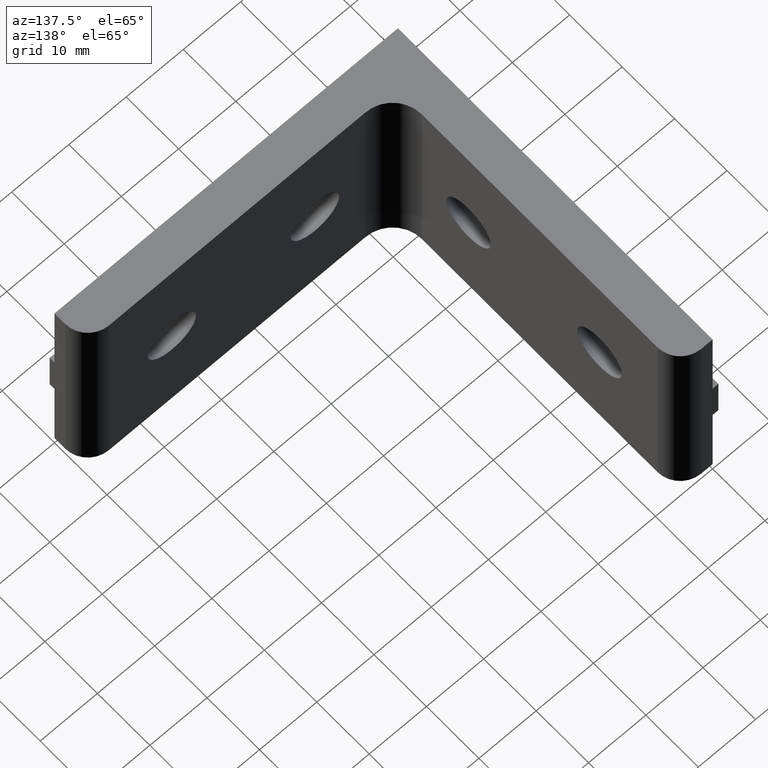
[diagram: clean part render]
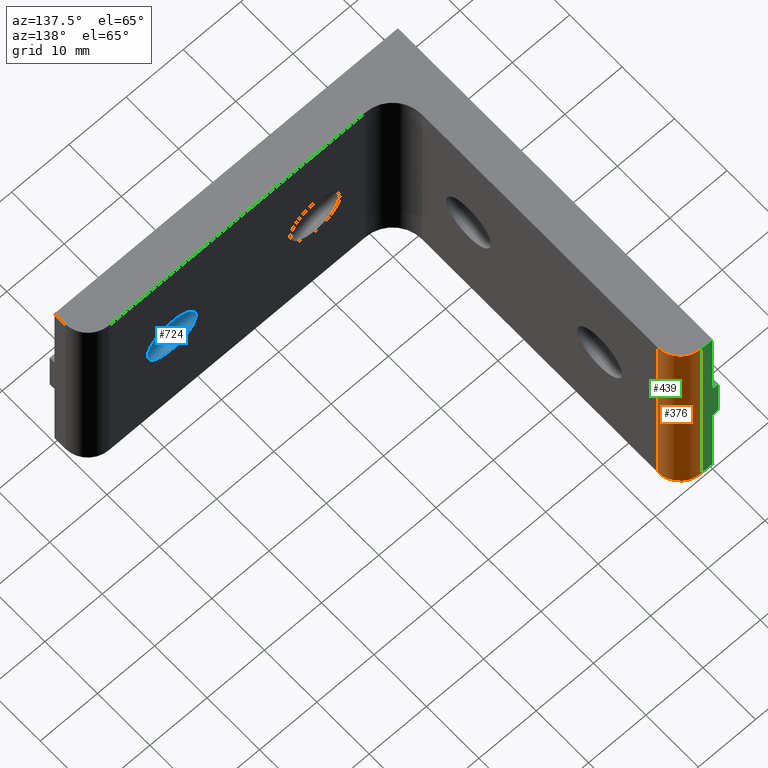
[diagram: same view with three faces highlighted in distinct colors, each labeled with its STEP entity id]
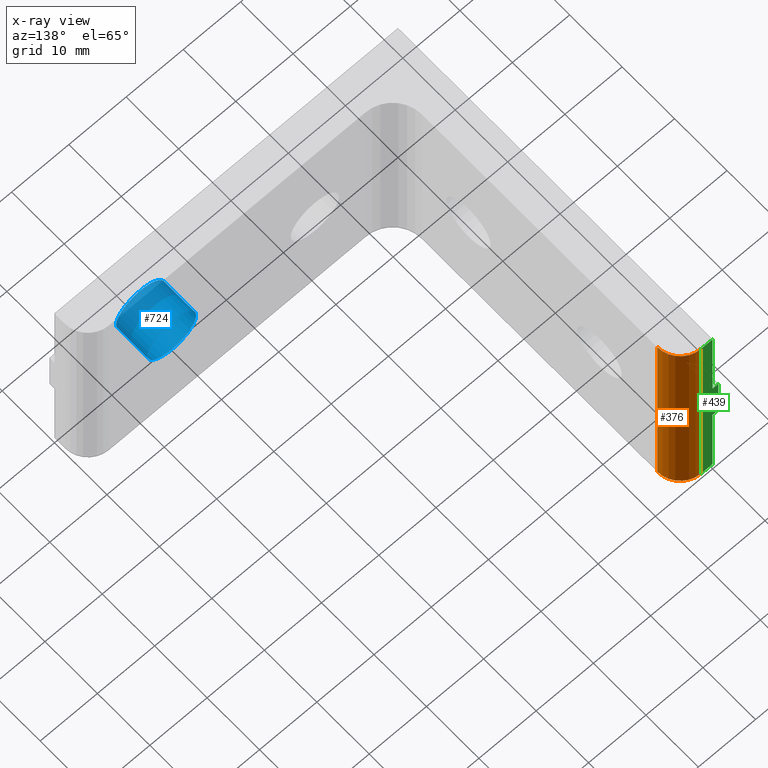
[diagram: x-ray of the same camera — body ghosted, the three highlighted faces saturated]
A machine part, auxiliary view with three faces highlighted in distinct colors.
The next image is the same camera in x-ray (body ghosted, the three faces saturated) — at least one of them is partly hidden behind the body in this view.
Their STEP definitions:

[orange] entity #376 — the highlighted cylindrical surface (edge-blend (fillet) strip) has radius 4 mm, axis along (0, 0, 1).
#278=CARTESIAN_POINT('',(6.000001230408543,55.999989355737398,-18.999991966924856));
#279=VERTEX_POINT('',#278);
#286=CARTESIAN_POINT('',(6.000001230408543,55.999989355737398,18.999991966924856));
#287=VERTEX_POINT('',#286);
#288=CARTESIAN_POINT('',(6.000001230408543,55.999989355737398,-18.999991966924856));
#289=DIRECTION('',(0.0,0.0,1.0));
#290=VECTOR('',#289,37.999983933849713);
#291=LINE('',#288,#290);
#292=EDGE_CURVE('',#279,#287,#291,.T.);
#344=CARTESIAN_POINT('',(2.000002118423254,55.999989355736034,-18.999991966924856));
#345=DIRECTION('',(0.0,0.0,1.0));
#346=DIRECTION('',(1.0,0.0,0.0));
#347=AXIS2_PLACEMENT_3D('',#344,#345,#346);
#348=CYLINDRICAL_SURFACE('',#347,3.999999111985138);
#349=CARTESIAN_POINT('',(2.000002118424618,59.999988467721323,-18.999991966924856));
#350=VERTEX_POINT('',#349);
#351=CARTESIAN_POINT('',(2.000002118423254,55.999989355736034,-18.999991966924856));
#352=DIRECTION('',(0.0,0.0,1.0));
#353=DIRECTION('',(1.0,0.0,0.0));
#354=AXIS2_PLACEMENT_3D('',#351,#352,#353);
#355=CIRCLE('',#354,3.999999111985138);
#356=EDGE_CURVE('',#279,#350,#355,.T.);
#357=ORIENTED_EDGE('',*,*,#356,.T.);
#358=CARTESIAN_POINT('',(2.000002118424618,59.999988467721323,18.999991966924856));
#359=VERTEX_POINT('',#358);
#360=CARTESIAN_POINT('',(2.000002118424618,59.999988467721323,-18.999991966924856));
#361=DIRECTION('',(0.0,0.0,1.0));
#362=VECTOR('',#361,37.999983933849713);
#363=LINE('',#360,#362);
#364=EDGE_CURVE('',#350,#359,#363,.T.);
#365=ORIENTED_EDGE('',*,*,#364,.T.);
#366=CARTESIAN_POINT('',(2.000002118423254,55.999989355736034,18.999991966924856));
#367=DIRECTION('',(0.0,0.0,1.0));
#368=DIRECTION('',(1.0,0.0,0.0));
#369=AXIS2_PLACEMENT_3D('',#366,#367,#368);
#370=CIRCLE('',#369,3.999999111985138);
#371=EDGE_CURVE('',#287,#359,#370,.T.);
#372=ORIENTED_EDGE('',*,*,#371,.F.);
#373=ORIENTED_EDGE('',*,*,#292,.F.);
#374=EDGE_LOOP('',(#357,#365,#372,#373));
#375=FACE_OUTER_BOUND('',#374,.T.);
#376=ADVANCED_FACE('',(#375),#348,.T.);

[blue] entity #724 — the highlighted cylindrical surface (bore or boss wall) has radius 4.25 mm, axis along (0, -1, 0).
#219=CARTESIAN_POINT('',(49.249999234934421,6.000000455882855,0.000003814999193));
#220=VERTEX_POINT('',#219);
#221=CARTESIAN_POINT('',(40.750004989566605,6.000000455882855,0.000003814999193));
#222=VERTEX_POINT('',#221);
#223=CARTESIAN_POINT('',(45.000002112250513,6.000000455882855,0.000003814999193));
#224=DIRECTION('',(0.0,-1.0,0.0));
#225=DIRECTION('',(1.0,0.0,0.0));
#226=AXIS2_PLACEMENT_3D('',#223,#224,#225);
#227=CIRCLE('',#226,4.249997122683908);
#228=EDGE_CURVE('',#220,#222,#227,.T.);
#230=CARTESIAN_POINT('',(45.000002112250513,6.000000455882855,0.000003814999193));
#231=DIRECTION('',(0.0,-1.0,0.0));
#232=DIRECTION('',(1.0,0.0,0.0));
#233=AXIS2_PLACEMENT_3D('',#230,#231,#232);
#234=CIRCLE('',#233,4.249997122683908);
#235=EDGE_CURVE('',#222,#220,#234,.T.);
#690=CARTESIAN_POINT('',(45.000002112250513,0.0,0.000003814999193));
#691=DIRECTION('',(0.0,-1.0,0.0));
#692=DIRECTION('',(1.0,0.0,0.0));
#693=AXIS2_PLACEMENT_3D('',#690,#691,#692);
#694=CYLINDRICAL_SURFACE('',#693,4.249997122683908);
#695=CARTESIAN_POINT('',(49.249999234934421,0.0,0.000003814999193));
#696=VERTEX_POINT('',#695);
#697=CARTESIAN_POINT('',(49.249999234934421,0.0,0.000003814999193));
#698=DIRECTION('',(0.0,1.0,0.0));
#699=VECTOR('',#698,6.000000455882855);
#700=LINE('',#697,#699);
#701=EDGE_CURVE('',#696,#220,#700,.T.);
#702=ORIENTED_EDGE('',*,*,#701,.T.);
#703=ORIENTED_EDGE('',*,*,#235,.F.);
#704=ORIENTED_EDGE('',*,*,#228,.F.);
#705=ORIENTED_EDGE('',*,*,#701,.F.);
#706=CARTESIAN_POINT('',(40.750004989566605,0.0,0.000003814999193));
#707=VERTEX_POINT('',#706);
#708=CARTESIAN_POINT('',(45.000002112250513,0.0,0.000003814999193));
#709=DIRECTION('',(0.0,-1.0,0.0));
#710=DIRECTION('',(1.0,0.0,0.0));
#711=AXIS2_PLACEMENT_3D('',#708,#709,#710);
#712=CIRCLE('',#711,4.249997122683908);
#713=EDGE_CURVE('',#696,#707,#712,.T.);
#714=ORIENTED_EDGE('',*,*,#713,.T.);
#715=CARTESIAN_POINT('',(45.000002112250513,0.0,0.000003814999193));
#716=DIRECTION('',(0.0,-1.0,0.0));
#717=DIRECTION('',(1.0,0.0,0.0));
#718=AXIS2_PLACEMENT_3D('',#715,#716,#717);
#719=CIRCLE('',#718,4.249997122683908);
#720=EDGE_CURVE('',#707,#696,#719,.T.);
#721=ORIENTED_EDGE('',*,*,#720,.T.);
#722=EDGE_LOOP('',(#702,#703,#704,#705,#714,#721));
#723=FACE_OUTER_BOUND('',#722,.T.);
#724=ADVANCED_FACE('',(#723),#694,.F.);

[green] entity #439 — the highlighted planar face has unit normal (0, 1, 0).
#349=CARTESIAN_POINT('',(2.000002118424618,59.999988467721323,-18.999991966924856));
#350=VERTEX_POINT('',#349);
#358=CARTESIAN_POINT('',(2.000002118424618,59.999988467721323,18.999991966924856));
#359=VERTEX_POINT('',#358);
#360=CARTESIAN_POINT('',(2.000002118424618,59.999988467721323,-18.999991966924856));
#361=DIRECTION('',(0.0,0.0,1.0));
#362=VECTOR('',#361,37.999983933849713);
#363=LINE('',#360,#362);
#364=EDGE_CURVE('',#350,#359,#363,.T.);
#377=CARTESIAN_POINT('',(2.000002118424618,59.999988467721323,-18.999991966924856));
#378=DIRECTION('',(0.0,1.0,0.0));
#379=DIRECTION('',(-1.0,0.0,0.0));
#380=AXIS2_PLACEMENT_3D('',#377,#378,#379);
#381=PLANE('',#380);
#382=CARTESIAN_POINT('',(-1.000001025562597,59.999988467721323,3.999991966924856));
#383=VERTEX_POINT('',#382);
#384=CARTESIAN_POINT('',(0.0,59.999988467721323,3.999991966924856));
#385=VERTEX_POINT('',#384);
#386=CARTESIAN_POINT('',(-1.000001025562597,59.999988467721323,3.999991966924856));
#387=DIRECTION('',(1.0,0.0,0.0));
#388=VECTOR('',#387,1.000001025562597);
#389=LINE('',#386,#388);
#390=EDGE_CURVE('',#383,#385,#389,.T.);
#391=ORIENTED_EDGE('',*,*,#390,.T.);
#392=CARTESIAN_POINT('',(0.0,59.999988467721323,18.999991966924856));
#393=VERTEX_POINT('',#392);
#394=CARTESIAN_POINT('',(0.0,59.999988467721323,18.999991966924856));
#395=DIRECTION('',(0.0,0.0,-1.0));
#396=VECTOR('',#395,15.0);
#397=LINE('',#394,#396);
#398=EDGE_CURVE('',#393,#385,#397,.T.);
#399=ORIENTED_EDGE('',*,*,#398,.F.);
#400=CARTESIAN_POINT('',(2.000002118424618,59.999988467721323,18.999991966924856));
#401=DIRECTION('',(-1.0,0.0,0.0));
#402=VECTOR('',#401,2.000002118424618);
#403=LINE('',#400,#402);
#404=EDGE_CURVE('',#359,#393,#403,.T.);
#405=ORIENTED_EDGE('',*,*,#404,.F.);
#406=ORIENTED_EDGE('',*,*,#364,.F.);
#407=CARTESIAN_POINT('',(0.0,59.999988467721323,-18.999991966924856));
#408=VERTEX_POINT('',#407);
#409=CARTESIAN_POINT('',(2.000002118424618,59.999988467721323,-18.999991966924856));
#410=DIRECTION('',(-1.0,0.0,0.0));
#411=VECTOR('',#410,2.000002118424618);
#412=LINE('',#409,#411);
#413=EDGE_CURVE('',#350,#408,#412,.T.);
#414=ORIENTED_EDGE('',*,*,#413,.T.);
#415=CARTESIAN_POINT('',(0.0,59.999988467721323,-3.999991966924860));
#416=VERTEX_POINT('',#415);
#417=CARTESIAN_POINT('',(0.0,59.999988467721323,-18.999991966924856));
#418=DIRECTION('',(0.0,0.0,1.0));
#419=VECTOR('',#418,14.999999999999996);
#420=LINE('',#417,#419);
#421=EDGE_CURVE('',#408,#416,#420,.T.);
#422=ORIENTED_EDGE('',*,*,#421,.T.);
#423=CARTESIAN_POINT('',(-1.000001025562597,59.999988467721323,-3.999991966924862));
#424=VERTEX_POINT('',#423);
#425=CARTESIAN_POINT('',(-1.000001025562597,59.999988467721323,-3.999991966924862));
#426=DIRECTION('',(1.0,0.0,0.0));
#427=VECTOR('',#426,1.000001025562597);
#428=LINE('',#425,#427);
#429=EDGE_CURVE('',#424,#416,#428,.T.);
#430=ORIENTED_EDGE('',*,*,#429,.F.);
#431=CARTESIAN_POINT('',(-1.000001025562597,59.999988467721323,-3.999991966924862));
#432=DIRECTION('',(0.0,0.0,1.0));
#433=VECTOR('',#432,7.999983933849718);
#434=LINE('',#431,#433);
#435=EDGE_CURVE('',#424,#383,#434,.T.);
#436=ORIENTED_EDGE('',*,*,#435,.T.);
#437=EDGE_LOOP('',(#391,#399,#405,#406,#414,#422,#430,#436));
#438=FACE_OUTER_BOUND('',#437,.T.);
#439=ADVANCED_FACE('',(#438),#381,.T.);